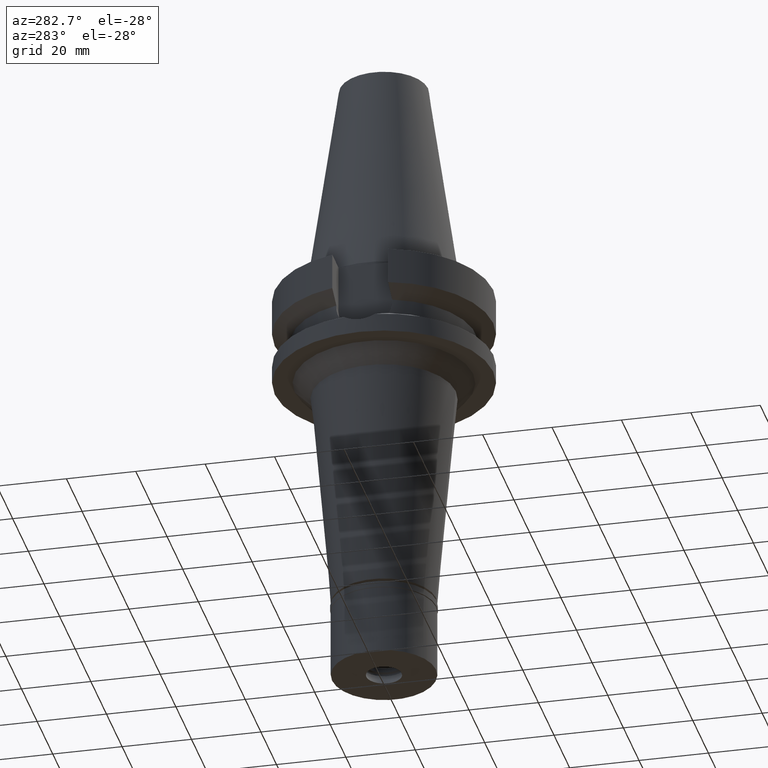
[diagram: clean part render]
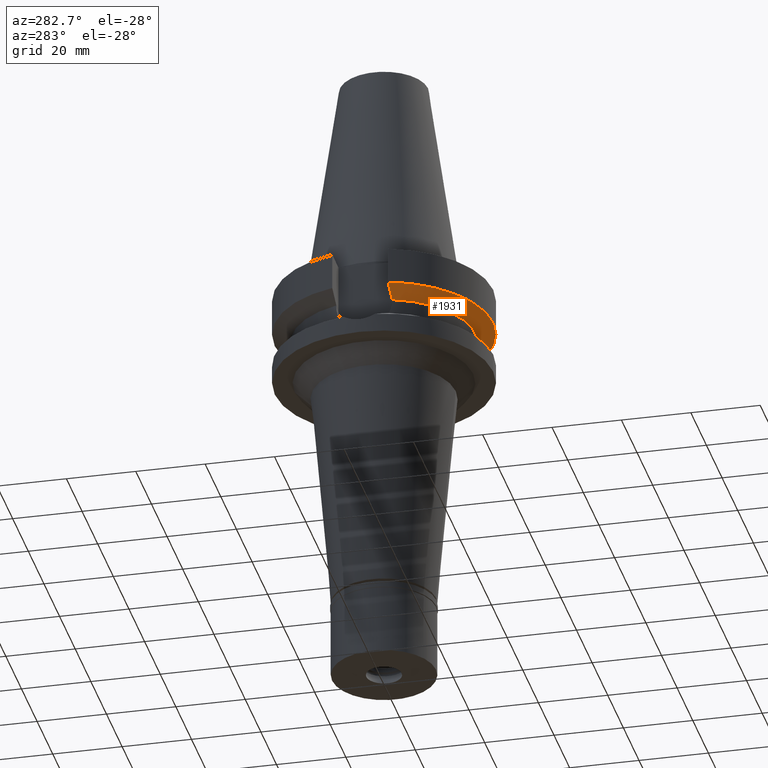
[diagram: same view with one face highlighted and labeled with its STEP entity id]
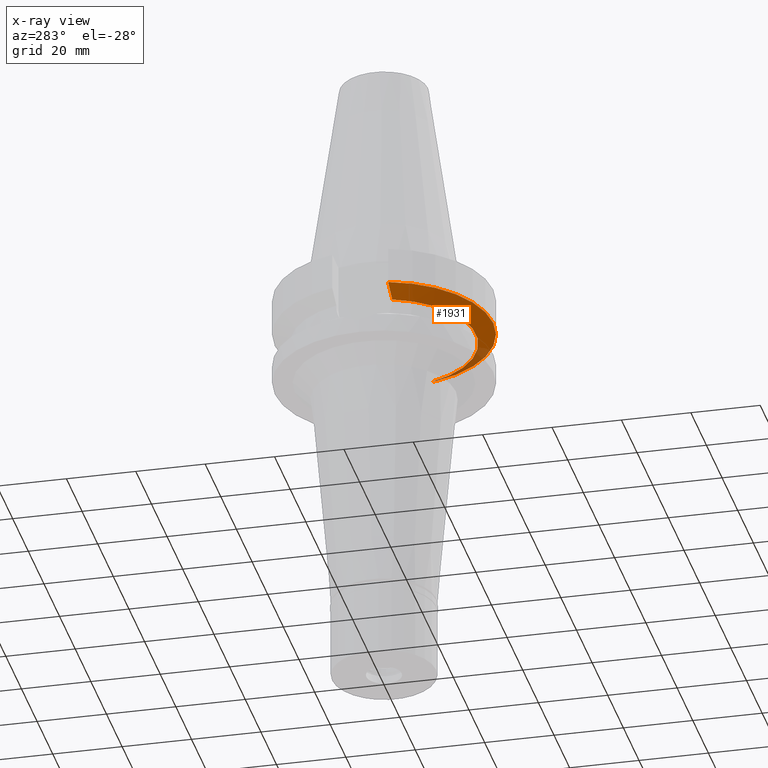
[diagram: x-ray of the same camera — body ghosted, the highlighted face saturated]
A machine part, auxiliary view. The second image highlights one B-rep face of the part: STEP entity #1931.
The next image is the same camera in x-ray: the body ghosted, the highlighted face saturated — about 11% of this face is hidden behind the body in this view.
In plain terms, the highlighted conical surface has half-angle 60 deg.
Its self-contained STEP definition (entity closure, byte-faithful):
#8 = ORIENTED_EDGE ( 'NONE', *, *, #3057, .T. ) ;
#160 = CARTESIAN_POINT ( 'NONE',  ( 30.45402272279000044, -8.049999999999000622, -11.56550565266999975 ) ) ;
#260 = CARTESIAN_POINT ( 'NONE',  ( -30.45402291362999847, -8.049999278021001459, -11.56551215538000044 ) ) ;
#284 = EDGE_LOOP ( 'NONE', ( #1334, #377, #8, #1080 ) ) ;
#377 = ORIENTED_EDGE ( 'NONE', *, *, #2622, .F. ) ;
#406 = CARTESIAN_POINT ( 'NONE',  ( 26.83757728215730509, -8.050003176126656612, -13.57772966315538810 ) ) ;
#521 = EDGE_CURVE ( 'NONE', #1560, #1465, #824, .T. ) ;
#693 = AXIS2_PLACEMENT_3D ( 'NONE', #1432, #1683, #2653 ) ;
#771 = CARTESIAN_POINT ( 'NONE',  ( -30.45402291362999847, -8.049999278021001459, -11.56551215538000044 ) ) ;
#784 = AXIS2_PLACEMENT_3D ( 'NONE', #1437, #2165, #2658 ) ;
#824 = B_SPLINE_CURVE_WITH_KNOTS ( 'NONE', 3,
 ( #260, #1710, #2678, #2868 ),
 .UNSPECIFIED., .F., .F.,
 ( 4, 4 ),
 ( 0.0000000000000000000, 1.000000000000000000 ),
 .UNSPECIFIED. ) ;
#922 = FACE_OUTER_BOUND ( 'NONE', #284, .T. ) ;
#1080 = ORIENTED_EDGE ( 'NONE', *, *, #1741, .F. ) ;
#1104 = CARTESIAN_POINT ( 'NONE',  ( -25.24772413127999826, -8.049995415587000380, -14.45229202951000147 ) ) ;
#1252 = CIRCLE ( 'NONE', #693, 31.50000000000000000 ) ;
#1334 = ORIENTED_EDGE ( 'NONE', *, *, #521, .T. ) ;
#1428 = DIRECTION ( 'NONE',  ( 0.0000000000000000000, 1.000000000000000000, 0.0000000000000000000 ) ) ;
#1432 = CARTESIAN_POINT ( 'NONE',  ( 0.0000000000000000000, 1.065333950388000029E-14, -11.56550565266999975 ) ) ;
#1437 = CARTESIAN_POINT ( 'NONE',  ( 0.0000000000000000000, 1.065333950388000029E-14, -14.45225699861000024 ) ) ;
#1457 = CARTESIAN_POINT ( 'NONE',  ( 0.0000000000000000000, 1.065333950388000029E-14, -13.00888132564000088 ) ) ;
#1465 = VERTEX_POINT ( 'NONE', #1104 ) ;
#1560 = VERTEX_POINT ( 'NONE', #771 ) ;
#1660 = CARTESIAN_POINT ( 'NONE',  ( 30.45402272279000044, -8.049999999999000622, -11.56550565266999975 ) ) ;
#1683 = DIRECTION ( 'NONE',  ( 0.0000000000000000000, 0.0000000000000000000, 1.000000000000000000 ) ) ;
#1710 = CARTESIAN_POINT ( 'NONE',  ( -28.57292328634143885, -8.049998556980142439, -12.61549605758602155 ) ) ;
#1741 = EDGE_CURVE ( 'NONE', #1560, #1808, #1252, .T. ) ;
#1808 = VERTEX_POINT ( 'NONE', #1660 ) ;
#1931 = ADVANCED_FACE ( 'NONE', ( #922 ), #2785, .T. ) ;
#1938 = DIRECTION ( 'NONE',  ( 0.0000000000000000000, 0.0000000000000000000, 1.000000000000000000 ) ) ;
#2165 = DIRECTION ( 'NONE',  ( 0.0000000000000000000, 0.0000000000000000000, -1.000000000000000000 ) ) ;
#2220 = AXIS2_PLACEMENT_3D ( 'NONE', #1457, #1938, #1428 ) ;
#2303 = CIRCLE ( 'NONE', #784, 26.50000000000000711 ) ;
#2310 = B_SPLINE_CURVE_WITH_KNOTS ( 'NONE', 3,
 ( #2316, #406, #3051, #160 ),
 .UNSPECIFIED., .F., .F.,
 ( 4, 4 ),
 ( 0.0000000000000000000, 1.000000000000000000 ),
 .UNSPECIFIED. ) ;
#2316 = CARTESIAN_POINT ( 'NONE',  ( 25.24772266958000344, -8.050000000000000711, -14.45225699861000024 ) ) ;
#2622 = EDGE_CURVE ( 'NONE', #2783, #1465, #2303, .T. ) ;
#2653 = DIRECTION ( 'NONE',  ( 0.0000000000000000000, -1.000000000000000000, 0.0000000000000000000 ) ) ;
#2658 = DIRECTION ( 'NONE',  ( 0.9527442516822307583, -0.3037735849057093818, 0.0000000000000000000 ) ) ;
#2678 = CARTESIAN_POINT ( 'NONE',  ( -26.83754615560623691, -8.049990821024023191, -13.57774888358378895 ) ) ;
#2783 = VERTEX_POINT ( 'NONE', #2935 ) ;
#2785 = CONICAL_SURFACE ( 'NONE', #2220, 29.00000000000000000, 1.047197551196400456 ) ;
#2868 = CARTESIAN_POINT ( 'NONE',  ( -25.24772413127999826, -8.049995415587000380, -14.45229202951000147 ) ) ;
#2935 = CARTESIAN_POINT ( 'NONE',  ( 25.24772266958000344, -8.050000000000000711, -14.45225699861000024 ) ) ;
#3051 = CARTESIAN_POINT ( 'NONE',  ( 28.57294949693998376, -8.050008281768370466, -12.61547991429564952 ) ) ;
#3057 = EDGE_CURVE ( 'NONE', #2783, #1808, #2310, .T. ) ;